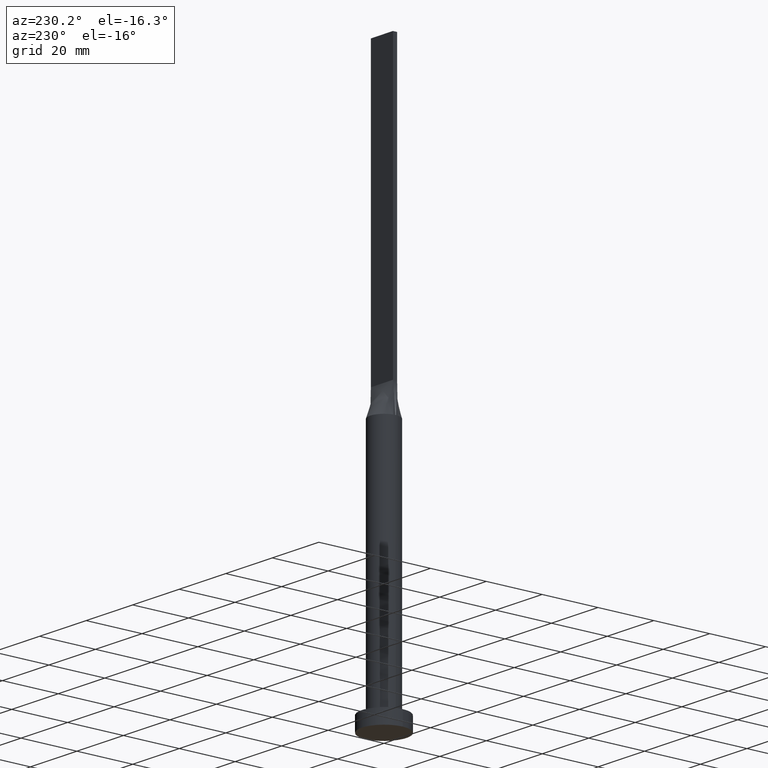
[diagram: clean part render]
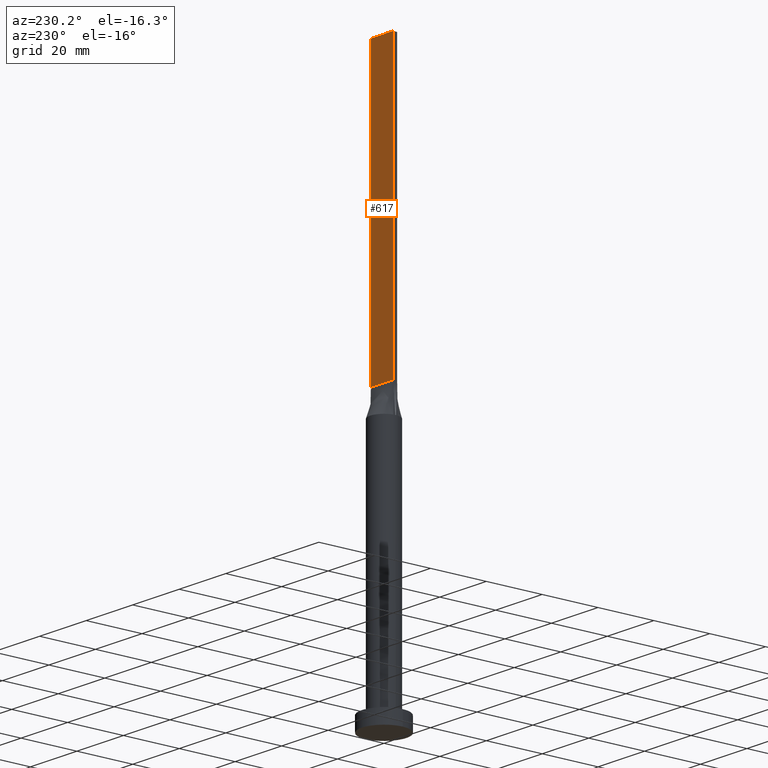
[diagram: same view with one face highlighted and labeled with its STEP entity id]
A machine part, auxiliary view. The second image highlights one B-rep face of the part: STEP entity #617.
In plain terms, the highlighted planar face has unit normal (0, -1, 0).
Its self-contained STEP definition (entity closure, byte-faithful):
#26 = CARTESIAN_POINT ( 'NONE',  ( 4.750000000000000000, 0.7500000000000002220, 100.0000000000000000 ) ) ;
#57 = LINE ( 'NONE', #579, #286 ) ;
#92 = VERTEX_POINT ( 'NONE', #598 ) ;
#103 = VERTEX_POINT ( 'NONE', #595 ) ;
#125 = CARTESIAN_POINT ( 'NONE',  ( 4.750000000000000000, 0.7500000000000002220, 200.0000000000000000 ) ) ;
#131 = ORIENTED_EDGE ( 'NONE', *, *, #277, .F. ) ;
#141 = FACE_OUTER_BOUND ( 'NONE', #226, .T. ) ;
#177 = EDGE_CURVE ( 'NONE', #103, #195, #499, .T. ) ;
#189 = PLANE ( 'NONE',  #475 ) ;
#195 = VERTEX_POINT ( 'NONE', #26 ) ;
#226 = EDGE_LOOP ( 'NONE', ( #520, #335, #131, #232 ) ) ;
#231 = CARTESIAN_POINT ( 'NONE',  ( 4.750000000000000000, 0.7500000000000002220, 200.0000000000000000 ) ) ;
#232 = ORIENTED_EDGE ( 'NONE', *, *, #177, .T. ) ;
#277 = EDGE_CURVE ( 'NONE', #103, #588, #565, .T. ) ;
#286 = VECTOR ( 'NONE', #491, 1000.000000000000000 ) ;
#294 = CARTESIAN_POINT ( 'NONE',  ( -4.750000000000000000, 0.7500000000000002220, 200.0000000000000000 ) ) ;
#299 = VECTOR ( 'NONE', #419, 1000.000000000000000 ) ;
#325 = CARTESIAN_POINT ( 'NONE',  ( 4.750000000000000000, 0.7500000000000002220, 200.0000000000000000 ) ) ;
#335 = ORIENTED_EDGE ( 'NONE', *, *, #355, .F. ) ;
#355 = EDGE_CURVE ( 'NONE', #588, #92, #528, .T. ) ;
#365 = EDGE_CURVE ( 'NONE', #195, #92, #57, .T. ) ;
#385 = VECTOR ( 'NONE', #541, 1000.000000000000000 ) ;
#419 = DIRECTION ( 'NONE',  ( -1.000000000000000000, 0.000000000000000000, 0.000000000000000000 ) ) ;
#475 = AXIS2_PLACEMENT_3D ( 'NONE', #325, #620, #515 ) ;
#491 = DIRECTION ( 'NONE',  ( -1.000000000000000000, -0.000000000000000000, -0.000000000000000000 ) ) ;
#499 = LINE ( 'NONE', #125, #385 ) ;
#515 = DIRECTION ( 'NONE',  ( 0.000000000000000000, -0.000000000000000000, -1.000000000000000000 ) ) ;
#520 = ORIENTED_EDGE ( 'NONE', *, *, #365, .T. ) ;
#523 = DIRECTION ( 'NONE',  ( -0.000000000000000000, -0.000000000000000000, -1.000000000000000000 ) ) ;
#528 = LINE ( 'NONE', #294, #558 ) ;
#541 = DIRECTION ( 'NONE',  ( -0.000000000000000000, -0.000000000000000000, -1.000000000000000000 ) ) ;
#544 = CARTESIAN_POINT ( 'NONE',  ( -4.750000000000000000, 0.7500000000000002220, 200.0000000000000000 ) ) ;
#558 = VECTOR ( 'NONE', #523, 1000.000000000000000 ) ;
#565 = LINE ( 'NONE', #231, #299 ) ;
#579 = CARTESIAN_POINT ( 'NONE',  ( -4.750000000000000000, 0.7500000000000002220, 100.0000000000000000 ) ) ;
#588 = VERTEX_POINT ( 'NONE', #544 ) ;
#595 = CARTESIAN_POINT ( 'NONE',  ( 4.750000000000000000, 0.7500000000000002220, 200.0000000000000000 ) ) ;
#598 = CARTESIAN_POINT ( 'NONE',  ( -4.750000000000000000, 0.7500000000000002220, 100.0000000000000000 ) ) ;
#617 = ADVANCED_FACE ( 'NONE', ( #141 ), #189, .F. ) ;
#620 = DIRECTION ( 'NONE',  ( 0.000000000000000000, -1.000000000000000000, 0.000000000000000000 ) ) ;